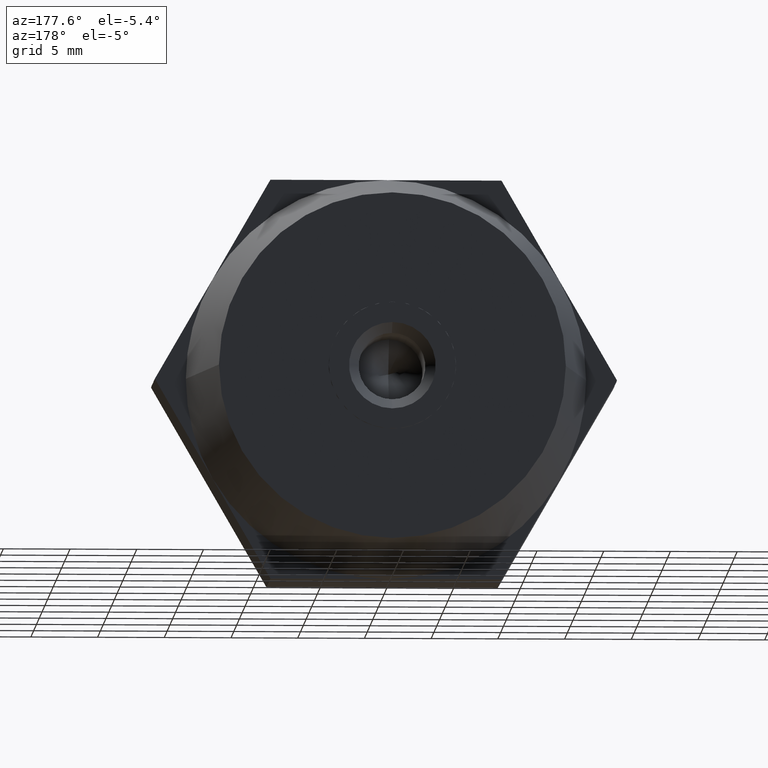
[diagram: clean part render]
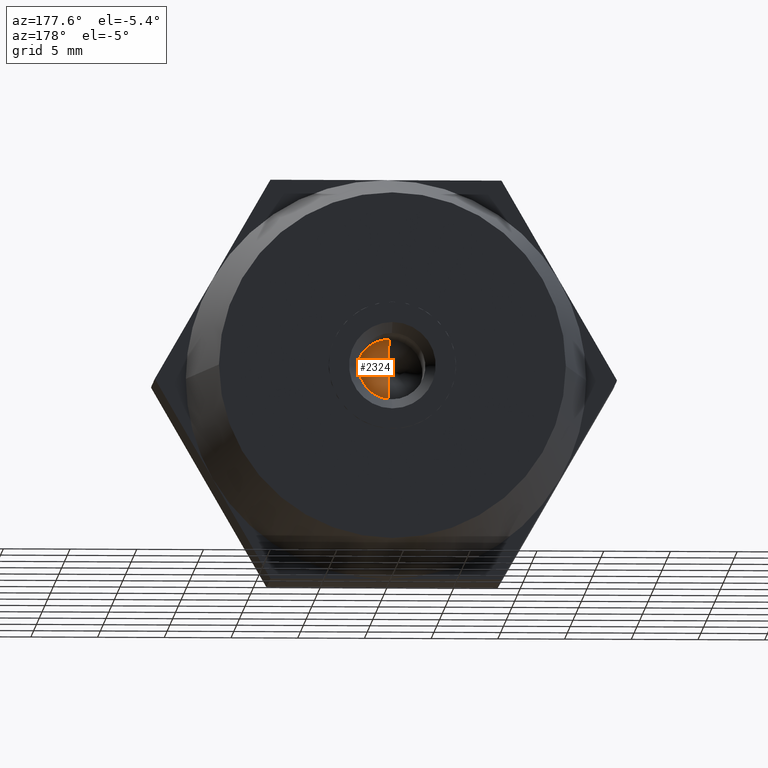
[diagram: same view with one face highlighted and labeled with its STEP entity id]
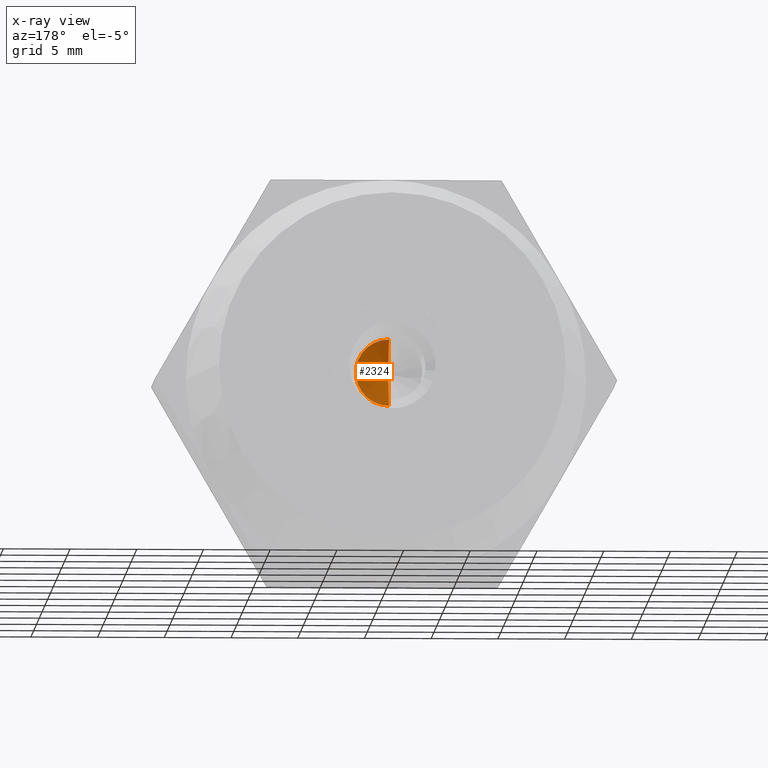
[diagram: x-ray of the same camera — body ghosted, the highlighted face saturated]
A machine part, auxiliary view. The second image highlights one B-rep face of the part: STEP entity #2324.
The next image is the same camera in x-ray: the body ghosted, the highlighted face saturated — about 0% of this face is hidden behind the body in this view.
In plain terms, the highlighted conical surface has half-angle 59 deg.
Its self-contained STEP definition (entity closure, byte-faithful):
#190 = LINE ( 'NONE', #2823, #2271 ) ;
#431 = CARTESIAN_POINT ( 'NONE',  ( 3.061616997868383100E-016, 2.000000000000000000, -2.500000000000000000 ) ) ;
#450 = ORIENTED_EDGE ( 'NONE', *, *, #3649, .F. ) ;
#486 = ORIENTED_EDGE ( 'NONE', *, *, #2050, .T. ) ;
#619 = VERTEX_POINT ( 'NONE', #1988 ) ;
#763 = CARTESIAN_POINT ( 'NONE',  ( 3.061616997868383100E-016, 2.000000000000000000, -2.500000000000000000 ) ) ;
#1189 = LINE ( 'NONE', #763, #3168 ) ;
#1296 = CIRCLE ( 'NONE', #2316, 2.500000000000000000 ) ;
#1355 = CARTESIAN_POINT ( 'NONE',  ( -1.837497175889724800E-015, 0.4978484524310979900, 0.0000000000000000000 ) ) ;
#1453 = CARTESIAN_POINT ( 'NONE',  ( 0.0000000000000000000, 2.000000000000000000, 0.0000000000000000000 ) ) ;
#1540 = VERTEX_POINT ( 'NONE', #431 ) ;
#1556 = VERTEX_POINT ( 'NONE', #1355 ) ;
#1569 = CARTESIAN_POINT ( 'NONE',  ( 0.0000000000000000000, 2.000000000000000000, 0.0000000000000000000 ) ) ;
#1703 = ORIENTED_EDGE ( 'NONE', *, *, #3712, .T. ) ;
#1905 = FACE_OUTER_BOUND ( 'NONE', #2857, .T. ) ;
#1961 = CONICAL_SURFACE ( 'NONE', #3085, 2.500000000000000000, 1.029744258676653600 ) ;
#1988 = CARTESIAN_POINT ( 'NONE',  ( 0.0000000000000000000, 2.000000000000000000, 2.500000000000000000 ) ) ;
#2050 = EDGE_CURVE ( 'NONE', #1540, #619, #1296, .T. ) ;
#2271 = VECTOR ( 'NONE', #3136, 999.9999999999998900 ) ;
#2316 = AXIS2_PLACEMENT_3D ( 'NONE', #1453, #3838, #2944 ) ;
#2324 = ADVANCED_FACE ( 'NONE', ( #1905 ), #1961, .F. ) ;
#2461 = DIRECTION ( 'NONE',  ( 0.0000000000000000000, 1.000000000000000000, 0.0000000000000000000 ) ) ;
#2823 = CARTESIAN_POINT ( 'NONE',  ( 0.0000000000000000000, 2.000000000000000000, 2.500000000000000000 ) ) ;
#2857 = EDGE_LOOP ( 'NONE', ( #450, #1703, #486 ) ) ;
#2944 = DIRECTION ( 'NONE',  ( 0.0000000000000000000, 0.0000000000000000000, 1.000000000000000000 ) ) ;
#3085 = AXIS2_PLACEMENT_3D ( 'NONE', #1569, #2461, #3670 ) ;
#3136 = DIRECTION ( 'NONE',  ( 0.0000000000000000000, 0.5150380749100549300, 0.8571673007021118900 ) ) ;
#3168 = VECTOR ( 'NONE', #3753, 999.9999999999998900 ) ;
#3649 = EDGE_CURVE ( 'NONE', #1556, #619, #190, .T. ) ;
#3670 = DIRECTION ( 'NONE',  ( 0.0000000000000000000, 0.0000000000000000000, 1.000000000000000000 ) ) ;
#3712 = EDGE_CURVE ( 'NONE', #1556, #1540, #1189, .T. ) ;
#3753 = DIRECTION ( 'NONE',  ( 1.049727191138618200E-016, 0.5150380749100549300, -0.8571673007021118900 ) ) ;
#3838 = DIRECTION ( 'NONE',  ( 0.0000000000000000000, 1.000000000000000000, 0.0000000000000000000 ) ) ;